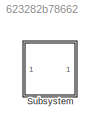
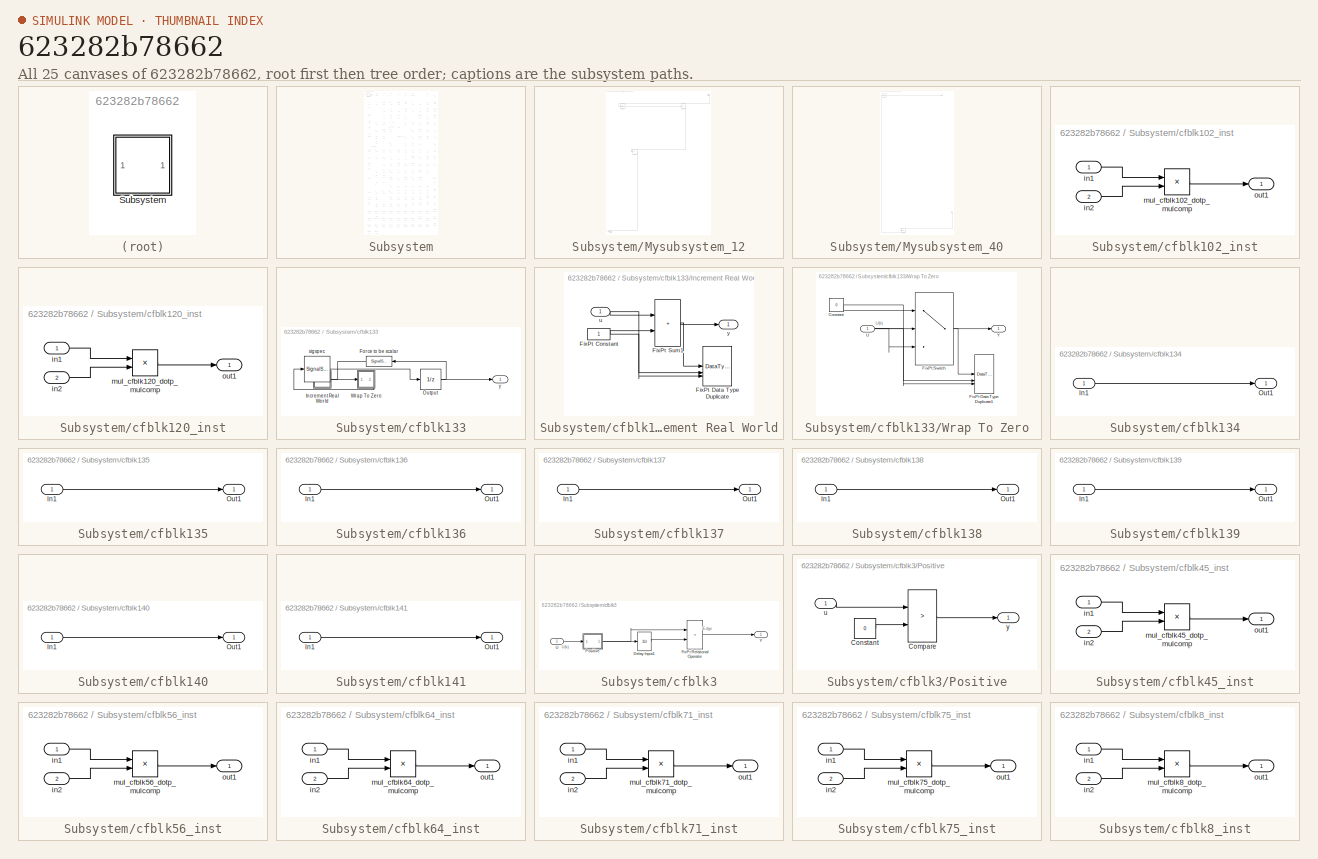
[diagram: thumbnail index - all 25 canvases of the model, root first then tree order]
MODEL slx_623282b78662
KIND model
CONFIG AbsTol = auto
CONFIG EnableMultiTasking = off
CONFIG FixedStep = auto
CONFIG MaxStep = auto
CONFIG MinStep = auto
CONFIG RelTol = 1e-3
CONFIG SampleTimeConstraint = Unconstrained
CONFIG SolverName = VariableStepAuto
CONFIG StartTime = 0.0
CONFIG StopTime = 10.0
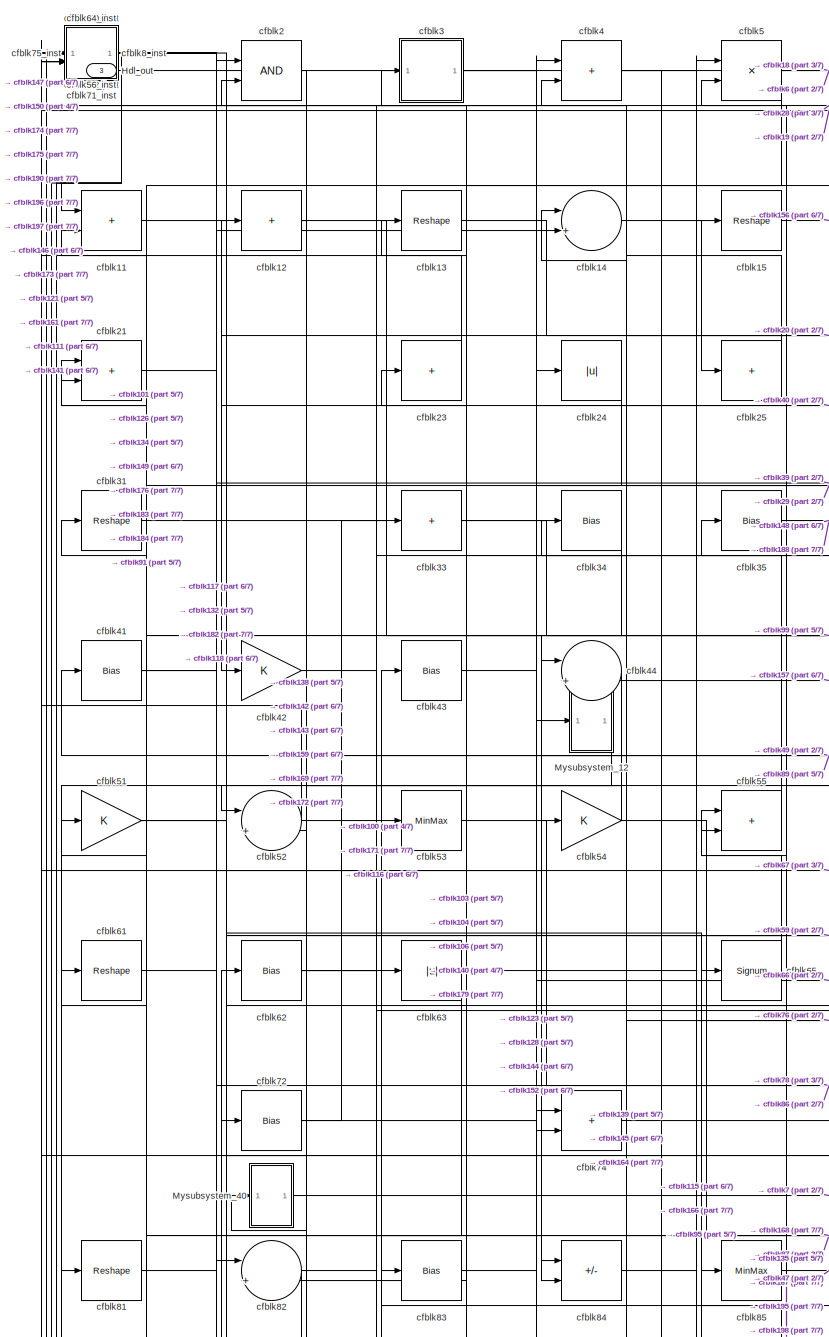
[diagram: Subsystem - part 1/7, top left region]
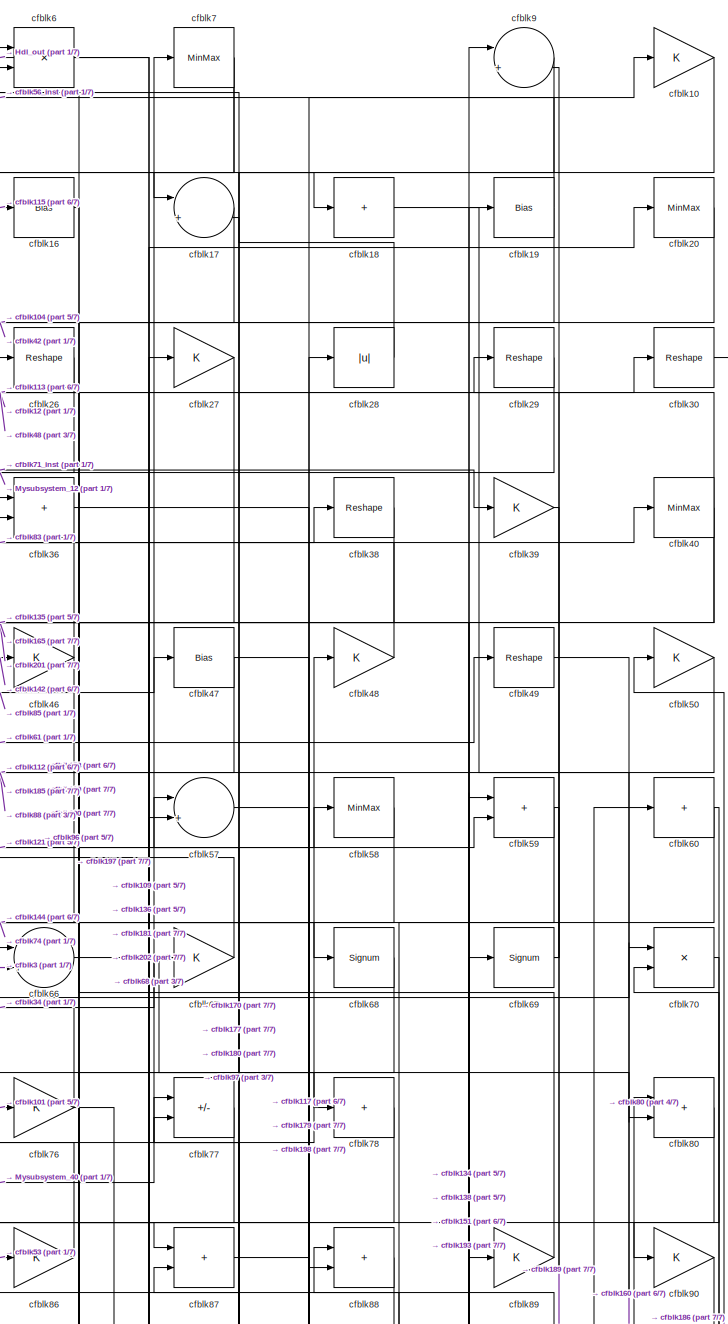
[diagram: Subsystem - part 2/7, top right region]
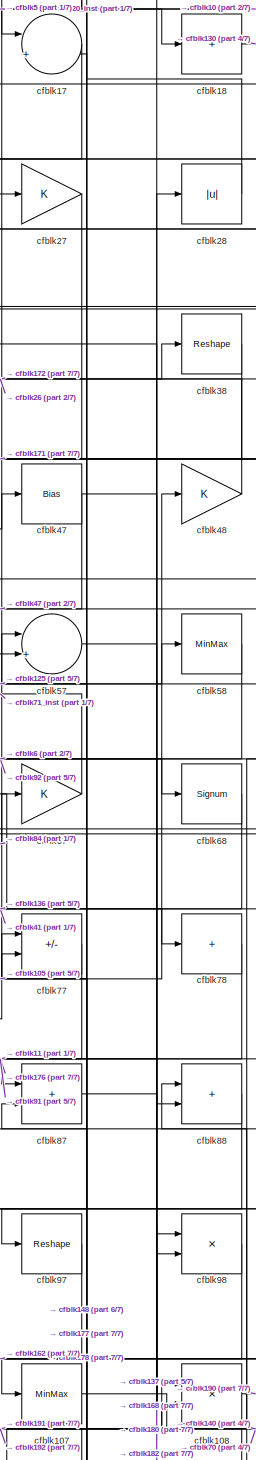
[diagram: Subsystem - part 3/7, top right region]
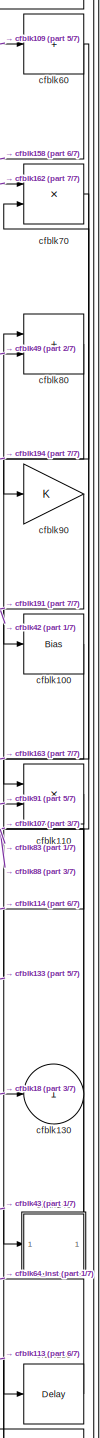
[diagram: Subsystem - part 4/7, middle right region]
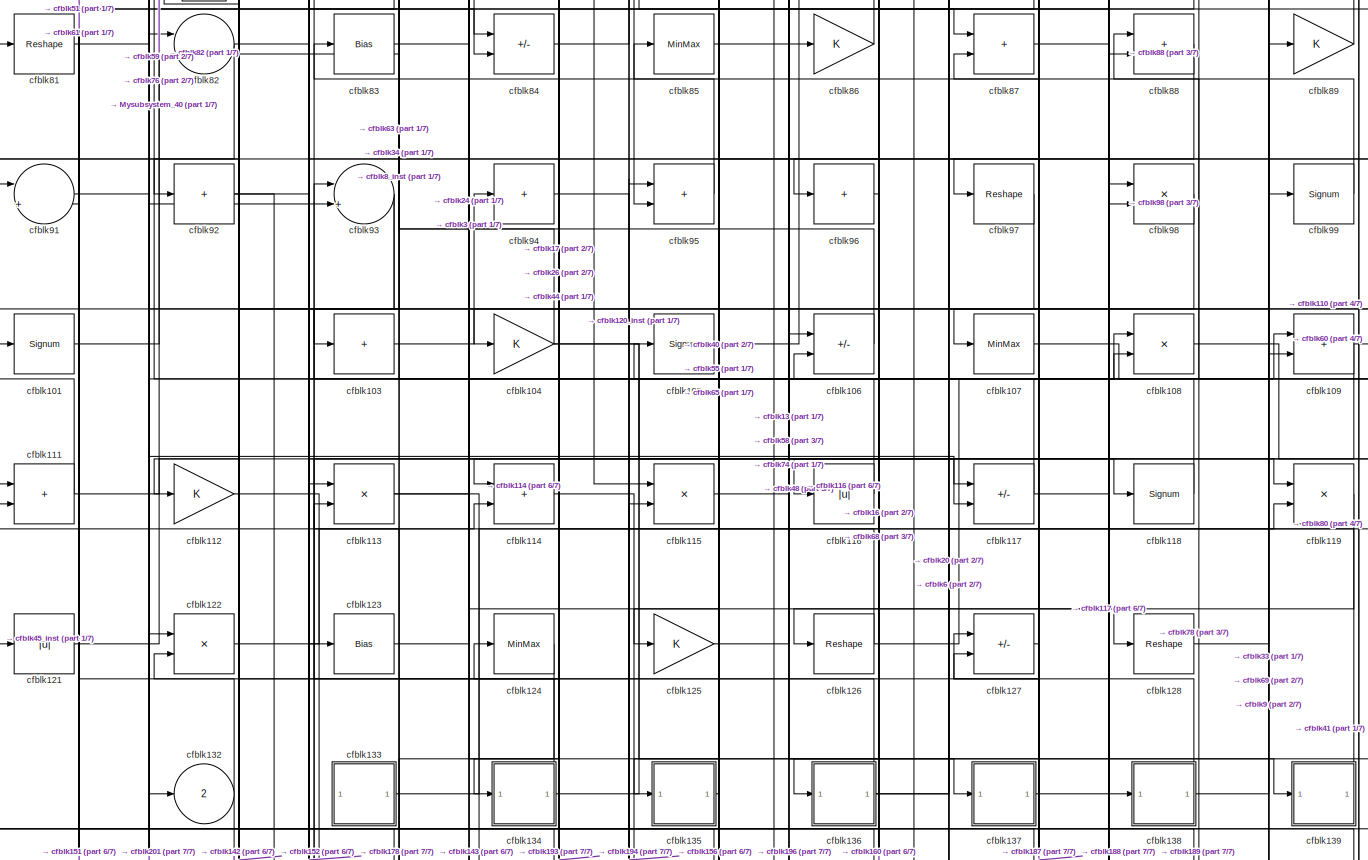
[diagram: Subsystem - part 5/7, full width, middle band]
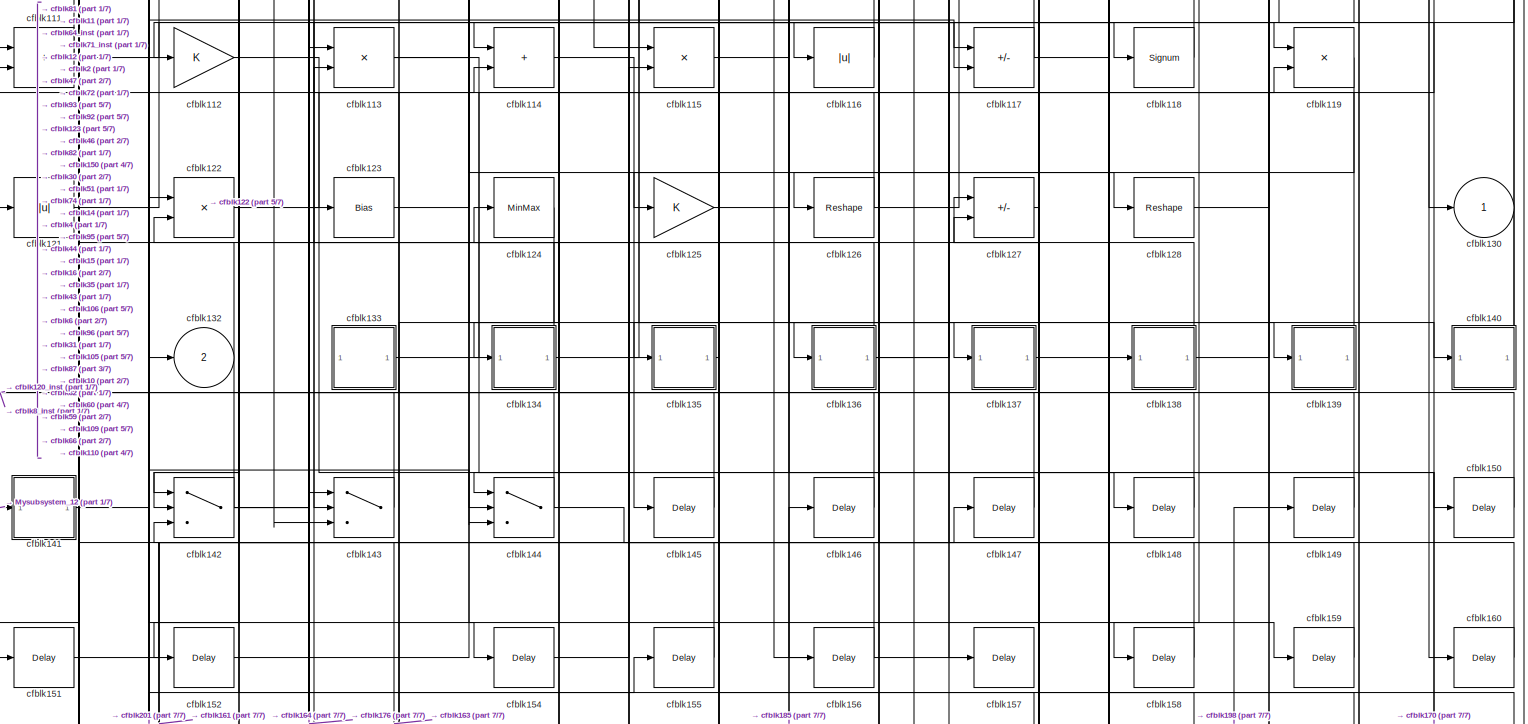
[diagram: Subsystem - part 6/7, full width, middle band]
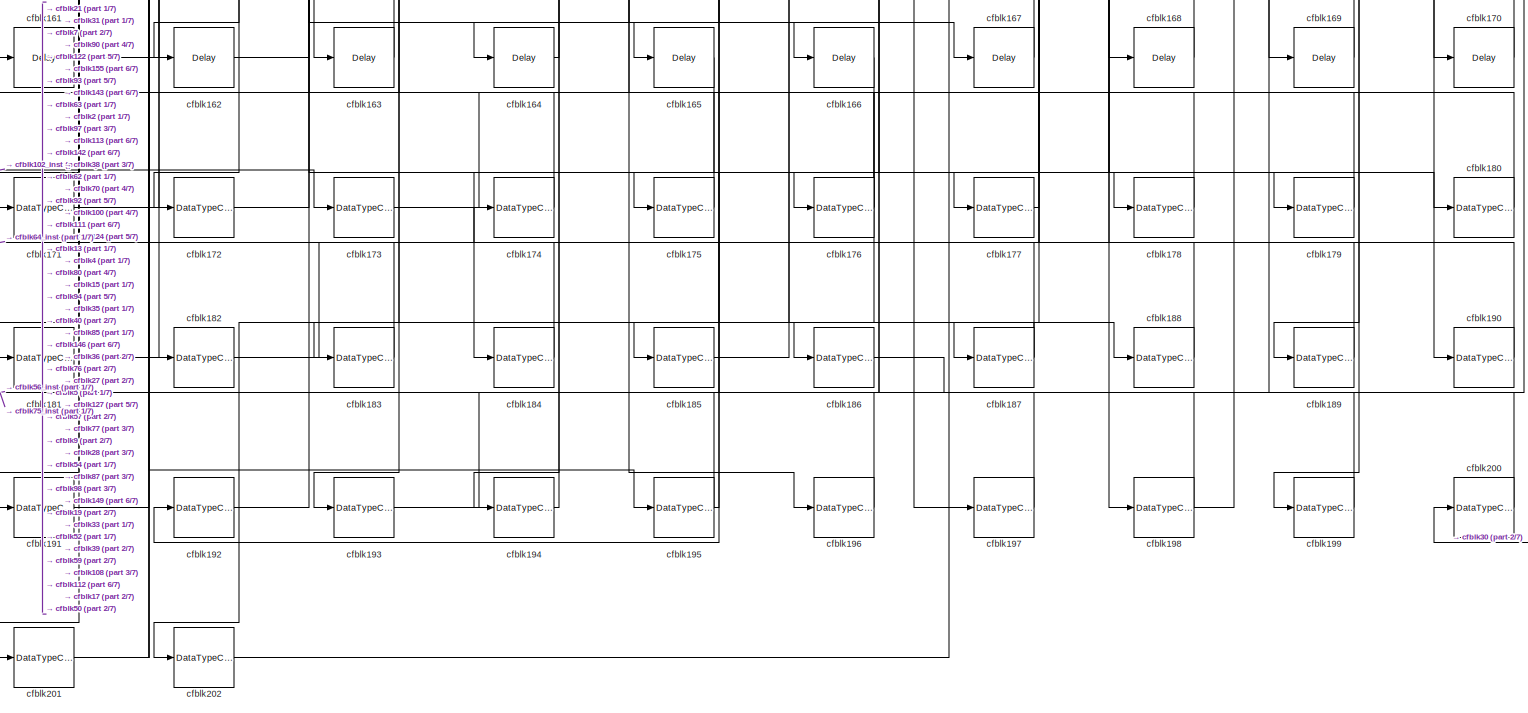
[diagram: Subsystem - part 7/7, full width, bottom band]
BLOCK [SubSystem] Subsystem
BLOCK [Outport] Subsystem/Hdl_out
  OutDataTypeStr = uint8
  Port = 3
  SampleTime = 1
BLOCK [SubSystem] Subsystem/Mysubsystem_12
BLOCK [Inport] Subsystem/Mysubsystem_12/In1
  OutDataTypeStr = uint8
  PortDimensions = 1
  SampleTime = 1
BLOCK [Outport] Subsystem/Mysubsystem_12/Out1
  SampleTime = 1
BLOCK [MinMax] Subsystem/Mysubsystem_12/cfblk32
BLOCK [Abs] Subsystem/Mysubsystem_12/cfblk37
  SaturateOnIntegerOverflow = off
BLOCK [Sum] Subsystem/Mysubsystem_12/cfblk73
  IconShape = rectangular
  Inputs = +
BLOCK [SubSystem] Subsystem/Mysubsystem_40
BLOCK [Inport] Subsystem/Mysubsystem_40/In1
  OutDataTypeStr = uint8
  PortDimensions = 1
  SampleTime = 1
BLOCK [Reference] Subsystem/Mysubsystem_40/cfblk1  REF=simulink/Logic and Bit
Operations/Extract Bits
  LibrarySourceBlock = hdlsllib/Logic and Bit\nOperations/Extract Bits
  SourceBlock = simulink/Logic and Bit\nOperations/Extract Bits
  SourceType = Extract Bits
BLOCK [Delay] Subsystem/Mysubsystem_40/cfblk153
  InputPortMap = u0
  SampleTime = 1
BLOCK [Outport] Subsystem/Mysubsystem_40/y
  SampleTime = 1
BLOCK [Gain] Subsystem/cfblk10
  OutDataTypeStr = uint8
BLOCK [Bias] Subsystem/cfblk100
  Bias = 0.0
  SaturateOnIntegerOverflow = off
BLOCK [Signum] Subsystem/cfblk101
BLOCK [SubSystem] Subsystem/cfblk102_inst
BLOCK [Inport] Subsystem/cfblk102_inst/in1
  OutDataTypeStr = uint8
  SampleTime = 1
BLOCK [Inport] Subsystem/cfblk102_inst/in2
  OutDataTypeStr = uint8
  Port = 2
  SampleTime = 1
BLOCK [Product] Subsystem/cfblk102_inst/mul_cfblk102_dotp_mulcomp
  Inputs = **
  OutDataTypeStr = uint8
  SampleTime = 1
BLOCK [Outport] Subsystem/cfblk102_inst/out1
  OutDataTypeStr = uint8
  SampleTime = 1
BLOCK [Sum] Subsystem/cfblk103
  IconShape = rectangular
  Inputs = +
  OutDataTypeStr = uint8
BLOCK [Gain] Subsystem/cfblk104
  OutDataTypeStr = uint8
BLOCK [Signum] Subsystem/cfblk105
BLOCK [Sum] Subsystem/cfblk106
  IconShape = rectangular
  Inputs = +-
  OutDataTypeStr = uint8
BLOCK [MinMax] Subsystem/cfblk107
  OutDataTypeStr = uint8
BLOCK [Product] Subsystem/cfblk108
  Inputs = */
  OutDataTypeStr = uint8
  RndMeth = Zero
  SaturateOnIntegerOverflow = on
BLOCK [Sum] Subsystem/cfblk109
  IconShape = rectangular
  OutDataTypeStr = uint8
BLOCK [Sum] Subsystem/cfblk11
  IconShape = rectangular
  OutDataTypeStr = uint8
BLOCK [Product] Subsystem/cfblk110
  Inputs = */
  OutDataTypeStr = uint8
  RndMeth = Zero
  SaturateOnIntegerOverflow = on
BLOCK [Sum] Subsystem/cfblk111
  IconShape = rectangular
  OutDataTypeStr = uint8
BLOCK [Gain] Subsystem/cfblk112
  OutDataTypeStr = uint8
BLOCK [Product] Subsystem/cfblk113
  Inputs = */
  OutDataTypeStr = uint8
  RndMeth = Zero
  SaturateOnIntegerOverflow = on
BLOCK [Sum] Subsystem/cfblk114
  IconShape = rectangular
  OutDataTypeStr = uint8
BLOCK [Product] Subsystem/cfblk115
  Inputs = */
  OutDataTypeStr = uint8
  RndMeth = Zero
  SaturateOnIntegerOverflow = on
BLOCK [Abs] Subsystem/cfblk116
  OutDataTypeStr = uint8
  SaturateOnIntegerOverflow = off
BLOCK [Sum] Subsystem/cfblk117
  IconShape = rectangular
  Inputs = +-
  OutDataTypeStr = uint8
BLOCK [Signum] Subsystem/cfblk118
BLOCK [Product] Subsystem/cfblk119
  Inputs = */
  OutDataTypeStr = uint8
  RndMeth = Zero
  SaturateOnIntegerOverflow = on
BLOCK [Sum] Subsystem/cfblk12
  IconShape = rectangular
  Inputs = +
  OutDataTypeStr = uint8
BLOCK [SubSystem] Subsystem/cfblk120_inst
BLOCK [Inport] Subsystem/cfblk120_inst/in1
  OutDataTypeStr = uint8
  SampleTime = 1
BLOCK [Inport] Subsystem/cfblk120_inst/in2
  OutDataTypeStr = uint8
  Port = 2
  SampleTime = 1
BLOCK [Product] Subsystem/cfblk120_inst/mul_cfblk120_dotp_mulcomp
  Inputs = **
  OutDataTypeStr = uint8
  SampleTime = 1
BLOCK [Outport] Subsystem/cfblk120_inst/out1
  OutDataTypeStr = uint8
  SampleTime = 1
BLOCK [Abs] Subsystem/cfblk121
  OutDataTypeStr = uint8
  SaturateOnIntegerOverflow = off
BLOCK [Product] Subsystem/cfblk122
  Inputs = */
  OutDataTypeStr = uint8
  RndMeth = Zero
  SaturateOnIntegerOverflow = on
BLOCK [Bias] Subsystem/cfblk123
  Bias = 0.0
  SaturateOnIntegerOverflow = off
BLOCK [MinMax] Subsystem/cfblk124
  OutDataTypeStr = uint8
BLOCK [Gain] Subsystem/cfblk125
  OutDataTypeStr = uint8
BLOCK [Reshape] Subsystem/cfblk126
BLOCK [Sum] Subsystem/cfblk127
  IconShape = rectangular
  Inputs = +-
  OutDataTypeStr = uint8
BLOCK [Reshape] Subsystem/cfblk128
BLOCK [Reshape] Subsystem/cfblk13
BLOCK [Outport] Subsystem/cfblk130
  OutDataTypeStr = uint8
  SampleTime = 1
  VectorParamsAs1DForOutWhenUnconnected = off
BLOCK [Outport] Subsystem/cfblk132
  OutDataTypeStr = uint8
  Port = 2
  SampleTime = 1
  VectorParamsAs1DForOutWhenUnconnected = off
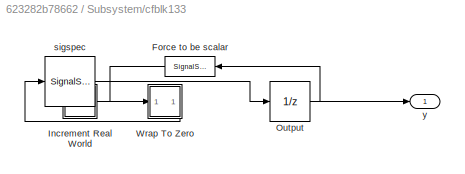
BLOCK [SubSystem] Subsystem/cfblk133
BLOCK [SignalSpecification] Subsystem/cfblk133/Force to be scalar
  Dimensions = 1
  DisableCoverage = on
BLOCK [SubSystem] Subsystem/cfblk133/Increment Real World
BLOCK [Constant] Subsystem/cfblk133/Increment Real World/FixPt Constant
  DisableCoverage = on
  OutDataTypeStr = Inherit: Inherit via back propagation
  SampleTime = -1
BLOCK [DataTypeDuplicate] Subsystem/cfblk133/Increment Real World/FixPt Data Type Duplicate
  DisableCoverage = on
  NumInputPorts = 3
BLOCK [Sum] Subsystem/cfblk133/Increment Real World/FixPt Sum1
  IconShape = rectangular
  InputSameDT = on
  LockScale = on
  OutDataTypeStr = Inherit: Inherit via back propagation
BLOCK [Inport] Subsystem/cfblk133/Increment Real World/u
  OutDataTypeStr = uint16
  SampleTime = 1
BLOCK [Outport] Subsystem/cfblk133/Increment Real World/y
  SampleTime = 1
BLOCK [UnitDelay] Subsystem/cfblk133/Output
  HasFrameUpgradeWarning = on
  InitialCondition = 0.0
  SampleTime = tsamp
BLOCK [SubSystem] Subsystem/cfblk133/Wrap To Zero
BLOCK [Constant] Subsystem/cfblk133/Wrap To Zero/Constant
  DisableCoverage = on
  OutDataTypeStr = Inherit: Inherit via back propagation
  SampleTime = -1
  Value = 0
BLOCK [DataTypeDuplicate] Subsystem/cfblk133/Wrap To Zero/FixPt Data Type Duplicate1
  DisableCoverage = on
  NumInputPorts = 3
BLOCK [Switch] Subsystem/cfblk133/Wrap To Zero/FixPt Switch
  Criteria = u2 > Threshold
  InputSameDT = off
  OutDataTypeStr = Inherit: Inherit via back propagation
  SaturateOnIntegerOverflow = off
  Threshold = Threshold
  ZeroCross = off
BLOCK [Inport] Subsystem/cfblk133/Wrap To Zero/U
  OutDataTypeStr = uint16
  SampleTime = 1
BLOCK [Outport] Subsystem/cfblk133/Wrap To Zero/Y
  SampleTime = 1
BLOCK [SignalSpecification] Subsystem/cfblk133/sigspec
  Dimensions = 1
  OutDataTypeStr = uint16
BLOCK [Outport] Subsystem/cfblk133/y
  SampleTime = 1
BLOCK [SubSystem] Subsystem/cfblk134
BLOCK [Inport] Subsystem/cfblk134/In1
  OutDataTypeStr = uint8
  PortDimensions = 1
  SampleTime = 1
BLOCK [Outport] Subsystem/cfblk134/Out1
  SampleTime = 1
BLOCK [SubSystem] Subsystem/cfblk135
BLOCK [Inport] Subsystem/cfblk135/In1
  OutDataTypeStr = uint8
  PortDimensions = 1
  SampleTime = 1
BLOCK [Outport] Subsystem/cfblk135/Out1
  SampleTime = 1
BLOCK [SubSystem] Subsystem/cfblk136
BLOCK [Inport] Subsystem/cfblk136/In1
  OutDataTypeStr = uint8
  PortDimensions = 1
  SampleTime = 1
BLOCK [Outport] Subsystem/cfblk136/Out1
  SampleTime = 1
BLOCK [SubSystem] Subsystem/cfblk137
BLOCK [Inport] Subsystem/cfblk137/In1
  OutDataTypeStr = uint8
  PortDimensions = 1
  SampleTime = 1
BLOCK [Outport] Subsystem/cfblk137/Out1
  SampleTime = 1
BLOCK [SubSystem] Subsystem/cfblk138
BLOCK [Inport] Subsystem/cfblk138/In1
  OutDataTypeStr = uint8
  PortDimensions = 1
  SampleTime = 1
BLOCK [Outport] Subsystem/cfblk138/Out1
  SampleTime = 1
BLOCK [SubSystem] Subsystem/cfblk139
BLOCK [Inport] Subsystem/cfblk139/In1
  OutDataTypeStr = uint8
  PortDimensions = 1
  SampleTime = 1
BLOCK [Outport] Subsystem/cfblk139/Out1
  SampleTime = 1
BLOCK [Sum] Subsystem/cfblk14
  Inputs = |++
  OutDataTypeStr = uint8
BLOCK [SubSystem] Subsystem/cfblk140
BLOCK [Inport] Subsystem/cfblk140/In1
  OutDataTypeStr = uint8
  PortDimensions = 1
  SampleTime = 1
BLOCK [Outport] Subsystem/cfblk140/Out1
  SampleTime = 1
BLOCK [SubSystem] Subsystem/cfblk141
BLOCK [Inport] Subsystem/cfblk141/In1
  OutDataTypeStr = uint8
  PortDimensions = 1
  SampleTime = 1
BLOCK [Outport] Subsystem/cfblk141/Out1
  SampleTime = 1
BLOCK [Switch] Subsystem/cfblk142
  InputSameDT = off
  OutDataTypeStr = uint8
  SaturateOnIntegerOverflow = off
BLOCK [Switch] Subsystem/cfblk143
  InputSameDT = off
  OutDataTypeStr = uint8
  SaturateOnIntegerOverflow = off
BLOCK [Switch] Subsystem/cfblk144
  InputSameDT = off
  OutDataTypeStr = uint8
  SaturateOnIntegerOverflow = off
BLOCK [Delay] Subsystem/cfblk145
  InputPortMap = u0
  SampleTime = 1
BLOCK [Delay] Subsystem/cfblk146
  InputPortMap = u0
  SampleTime = 1
BLOCK [Delay] Subsystem/cfblk147
  InputPortMap = u0
  SampleTime = 1
BLOCK [Delay] Subsystem/cfblk148
  InputPortMap = u0
  SampleTime = 1
BLOCK [Delay] Subsystem/cfblk149
  InputPortMap = u0
  SampleTime = 1
BLOCK [Reshape] Subsystem/cfblk15
BLOCK [Delay] Subsystem/cfblk150
  InputPortMap = u0
  SampleTime = 1
BLOCK [Delay] Subsystem/cfblk151
  InputPortMap = u0
  SampleTime = 1
BLOCK [Delay] Subsystem/cfblk152
  InputPortMap = u0
  SampleTime = 1
BLOCK [Delay] Subsystem/cfblk154
  InputPortMap = u0
  SampleTime = 1
BLOCK [Delay] Subsystem/cfblk155
  InputPortMap = u0
  SampleTime = 1
BLOCK [Delay] Subsystem/cfblk156
  InputPortMap = u0
  SampleTime = 1
BLOCK [Delay] Subsystem/cfblk157
  InputPortMap = u0
  SampleTime = 1
BLOCK [Delay] Subsystem/cfblk158
  InputPortMap = u0
  SampleTime = 1
BLOCK [Delay] Subsystem/cfblk159
  InputPortMap = u0
  SampleTime = 1
BLOCK [Bias] Subsystem/cfblk16
  Bias = 0.0
  SaturateOnIntegerOverflow = off
BLOCK [Delay] Subsystem/cfblk160
  InputPortMap = u0
  SampleTime = 1
BLOCK [Delay] Subsystem/cfblk161
  InputPortMap = u0
  SampleTime = 1
BLOCK [Delay] Subsystem/cfblk162
  InputPortMap = u0
  SampleTime = 1
BLOCK [Delay] Subsystem/cfblk163
  InputPortMap = u0
  SampleTime = 1
BLOCK [Delay] Subsystem/cfblk164
  InputPortMap = u0
  SampleTime = 1
BLOCK [Delay] Subsystem/cfblk165
  InputPortMap = u0
  SampleTime = 1
BLOCK [Delay] Subsystem/cfblk166
  InputPortMap = u0
  SampleTime = 1
BLOCK [Delay] Subsystem/cfblk167
  InputPortMap = u0
  SampleTime = 1
BLOCK [Delay] Subsystem/cfblk168
  InputPortMap = u0
  SampleTime = 1
BLOCK [Delay] Subsystem/cfblk169
  InputPortMap = u0
  SampleTime = 1
BLOCK [Sum] Subsystem/cfblk17
  Inputs = |++
  OutDataTypeStr = uint8
BLOCK [Delay] Subsystem/cfblk170
  InputPortMap = u0
  SampleTime = 1
BLOCK [DataTypeConversion] Subsystem/cfblk171
  OutDataTypeStr = uint8
  RndMeth = Floor
  SaturateOnIntegerOverflow = off
BLOCK [DataTypeConversion] Subsystem/cfblk172
  OutDataTypeStr = uint8
  RndMeth = Floor
  SaturateOnIntegerOverflow = off
BLOCK [DataTypeConversion] Subsystem/cfblk173
  OutDataTypeStr = uint8
  RndMeth = Floor
  SaturateOnIntegerOverflow = off
BLOCK [DataTypeConversion] Subsystem/cfblk174
  OutDataTypeStr = uint8
  RndMeth = Floor
  SaturateOnIntegerOverflow = off
BLOCK [DataTypeConversion] Subsystem/cfblk175
  OutDataTypeStr = uint8
  RndMeth = Floor
  SaturateOnIntegerOverflow = off
BLOCK [DataTypeConversion] Subsystem/cfblk176
  OutDataTypeStr = uint8
  RndMeth = Floor
  SaturateOnIntegerOverflow = off
BLOCK [DataTypeConversion] Subsystem/cfblk177
  OutDataTypeStr = uint8
  RndMeth = Floor
  SaturateOnIntegerOverflow = off
BLOCK [DataTypeConversion] Subsystem/cfblk178
  OutDataTypeStr = uint8
  RndMeth = Floor
  SaturateOnIntegerOverflow = off
BLOCK [DataTypeConversion] Subsystem/cfblk179
  OutDataTypeStr = uint8
  RndMeth = Floor
  SaturateOnIntegerOverflow = off
BLOCK [Sum] Subsystem/cfblk18
  IconShape = rectangular
  Inputs = +
  OutDataTypeStr = uint8
BLOCK [DataTypeConversion] Subsystem/cfblk180
  OutDataTypeStr = uint8
  RndMeth = Floor
  SaturateOnIntegerOverflow = off
BLOCK [DataTypeConversion] Subsystem/cfblk181
  OutDataTypeStr = uint8
  RndMeth = Floor
  SaturateOnIntegerOverflow = off
BLOCK [DataTypeConversion] Subsystem/cfblk182
  OutDataTypeStr = uint8
  RndMeth = Floor
  SaturateOnIntegerOverflow = off
BLOCK [DataTypeConversion] Subsystem/cfblk183
  OutDataTypeStr = uint8
  RndMeth = Floor
  SaturateOnIntegerOverflow = off
BLOCK [DataTypeConversion] Subsystem/cfblk184
  OutDataTypeStr = uint8
  RndMeth = Floor
  SaturateOnIntegerOverflow = off
BLOCK [DataTypeConversion] Subsystem/cfblk185
  OutDataTypeStr = uint8
  RndMeth = Floor
  SaturateOnIntegerOverflow = off
BLOCK [DataTypeConversion] Subsystem/cfblk186
  OutDataTypeStr = uint8
  RndMeth = Floor
  SaturateOnIntegerOverflow = off
BLOCK [DataTypeConversion] Subsystem/cfblk187
  OutDataTypeStr = uint8
  RndMeth = Floor
  SaturateOnIntegerOverflow = off
BLOCK [DataTypeConversion] Subsystem/cfblk188
  OutDataTypeStr = uint8
  RndMeth = Floor
  SaturateOnIntegerOverflow = off
BLOCK [DataTypeConversion] Subsystem/cfblk189
  OutDataTypeStr = uint8
  RndMeth = Floor
  SaturateOnIntegerOverflow = off
BLOCK [Bias] Subsystem/cfblk19
  Bias = 0.0
  SaturateOnIntegerOverflow = off
BLOCK [DataTypeConversion] Subsystem/cfblk190
  OutDataTypeStr = uint8
  RndMeth = Floor
  SaturateOnIntegerOverflow = off
BLOCK [DataTypeConversion] Subsystem/cfblk191
  OutDataTypeStr = uint8
  RndMeth = Floor
  SaturateOnIntegerOverflow = off
BLOCK [DataTypeConversion] Subsystem/cfblk192
  OutDataTypeStr = uint8
  RndMeth = Floor
  SaturateOnIntegerOverflow = off
BLOCK [DataTypeConversion] Subsystem/cfblk193
  OutDataTypeStr = uint8
  RndMeth = Floor
  SaturateOnIntegerOverflow = off
BLOCK [DataTypeConversion] Subsystem/cfblk194
  OutDataTypeStr = uint8
  RndMeth = Floor
  SaturateOnIntegerOverflow = off
BLOCK [DataTypeConversion] Subsystem/cfblk195
  OutDataTypeStr = uint8
  RndMeth = Floor
  SaturateOnIntegerOverflow = off
BLOCK [DataTypeConversion] Subsystem/cfblk196
  OutDataTypeStr = uint8
  RndMeth = Floor
  SaturateOnIntegerOverflow = off
BLOCK [DataTypeConversion] Subsystem/cfblk197
  OutDataTypeStr = uint8
  RndMeth = Floor
  SaturateOnIntegerOverflow = off
BLOCK [DataTypeConversion] Subsystem/cfblk198
  OutDataTypeStr = uint8
  RndMeth = Floor
  SaturateOnIntegerOverflow = off
BLOCK [DataTypeConversion] Subsystem/cfblk199
  OutDataTypeStr = uint8
  RndMeth = Floor
  SaturateOnIntegerOverflow = off
BLOCK [Logic] Subsystem/cfblk2
  AllPortsSameDT = off
  OutDataTypeStr = boolean
BLOCK [MinMax] Subsystem/cfblk20
  OutDataTypeStr = uint8
BLOCK [DataTypeConversion] Subsystem/cfblk200
  OutDataTypeStr = uint8
  RndMeth = Floor
  SaturateOnIntegerOverflow = off
BLOCK [DataTypeConversion] Subsystem/cfblk201
  OutDataTypeStr = uint8
  RndMeth = Floor
  SaturateOnIntegerOverflow = off
BLOCK [DataTypeConversion] Subsystem/cfblk202
  OutDataTypeStr = uint8
  RndMeth = Floor
  SaturateOnIntegerOverflow = off
BLOCK [Sum] Subsystem/cfblk21
  IconShape = rectangular
  OutDataTypeStr = uint8
BLOCK [Sum] Subsystem/cfblk23
  IconShape = rectangular
  Inputs = +
  OutDataTypeStr = uint8
BLOCK [Abs] Subsystem/cfblk24
  OutDataTypeStr = uint8
  SaturateOnIntegerOverflow = off
BLOCK [Sum] Subsystem/cfblk25
  IconShape = rectangular
  Inputs = +
  OutDataTypeStr = uint8
BLOCK [Reshape] Subsystem/cfblk26
BLOCK [Gain] Subsystem/cfblk27
  OutDataTypeStr = uint8
BLOCK [Abs] Subsystem/cfblk28
  OutDataTypeStr = uint8
  SaturateOnIntegerOverflow = off
BLOCK [Reshape] Subsystem/cfblk29
BLOCK [SubSystem] Subsystem/cfblk3
BLOCK [UnitDelay] Subsystem/cfblk3/Delay Input1
  Description = Store in Global RAM
  DisableCoverage = on
  HasFrameUpgradeWarning = on
  InitialCondition = vinit
  SampleTime = -1
BLOCK [RelationalOperator] Subsystem/cfblk3/FixPt Relational Operator
  InputSameDT = off
  Operator = >
  OutDataTypeStr = fixdt(0, 8)
  ZeroCross = off
BLOCK [SubSystem] Subsystem/cfblk3/Positive
BLOCK [RelationalOperator] Subsystem/cfblk3/Positive/Compare
  Operator = >
  OutDataTypeStr = boolean
  ZeroCross = off
BLOCK [Constant] Subsystem/cfblk3/Positive/Constant
  DisableCoverage = on
  OutDataTypeStr = Inherit: Inherit via back propagation
  PreserveConstantTs = on
  SampleTime = -1
  Value = 0
BLOCK [Inport] Subsystem/cfblk3/Positive/u
  OutDataTypeStr = uint8
  SampleTime = 1
BLOCK [Outport] Subsystem/cfblk3/Positive/y
  SampleTime = 1
BLOCK [Inport] Subsystem/cfblk3/U
  OutDataTypeStr = uint8
  SampleTime = 1
BLOCK [Outport] Subsystem/cfblk3/Y
  SampleTime = 1
BLOCK [Reshape] Subsystem/cfblk30
BLOCK [Reshape] Subsystem/cfblk31
BLOCK [Sum] Subsystem/cfblk33
  IconShape = rectangular
  Inputs = +
  OutDataTypeStr = uint8
BLOCK [Bias] Subsystem/cfblk34
  Bias = 0.0
  SaturateOnIntegerOverflow = off
BLOCK [Bias] Subsystem/cfblk35
  Bias = 0.0
  SaturateOnIntegerOverflow = off
BLOCK [Sum] Subsystem/cfblk36
  IconShape = rectangular
  OutDataTypeStr = uint8
BLOCK [Reshape] Subsystem/cfblk38
BLOCK [Gain] Subsystem/cfblk39
  OutDataTypeStr = uint8
BLOCK [Sum] Subsystem/cfblk4
  IconShape = rectangular
  OutDataTypeStr = uint8
BLOCK [MinMax] Subsystem/cfblk40
  OutDataTypeStr = uint8
BLOCK [Bias] Subsystem/cfblk41
  Bias = 0.0
  SaturateOnIntegerOverflow = off
BLOCK [Gain] Subsystem/cfblk42
  OutDataTypeStr = uint8
BLOCK [Bias] Subsystem/cfblk43
  Bias = 0.0
  SaturateOnIntegerOverflow = off
BLOCK [Sum] Subsystem/cfblk44
  Inputs = |++
  OutDataTypeStr = uint8
BLOCK [SubSystem] Subsystem/cfblk45_inst
BLOCK [Inport] Subsystem/cfblk45_inst/in1
  OutDataTypeStr = uint8
  SampleTime = 1
BLOCK [Inport] Subsystem/cfblk45_inst/in2
  OutDataTypeStr = uint8
  Port = 2
  SampleTime = 1
BLOCK [Product] Subsystem/cfblk45_inst/mul_cfblk45_dotp_mulcomp
  Inputs = **
  OutDataTypeStr = uint8
  SampleTime = 1
BLOCK [Outport] Subsystem/cfblk45_inst/out1
  OutDataTypeStr = uint8
  SampleTime = 1
BLOCK [Gain] Subsystem/cfblk46
  OutDataTypeStr = uint8
BLOCK [Bias] Subsystem/cfblk47
  Bias = 0.0
  SaturateOnIntegerOverflow = off
BLOCK [Gain] Subsystem/cfblk48
  OutDataTypeStr = uint8
BLOCK [Reshape] Subsystem/cfblk49
BLOCK [Product] Subsystem/cfblk5
  Inputs = */
  OutDataTypeStr = uint8
  RndMeth = Zero
  SaturateOnIntegerOverflow = on
BLOCK [Gain] Subsystem/cfblk50
  OutDataTypeStr = uint8
BLOCK [Gain] Subsystem/cfblk51
  OutDataTypeStr = uint8
BLOCK [Sum] Subsystem/cfblk52
  Inputs = |++
  OutDataTypeStr = uint8
BLOCK [MinMax] Subsystem/cfblk53
  OutDataTypeStr = uint8
BLOCK [Gain] Subsystem/cfblk54
  OutDataTypeStr = uint8
BLOCK [Sum] Subsystem/cfblk55
  IconShape = rectangular
  OutDataTypeStr = uint8
BLOCK [SubSystem] Subsystem/cfblk56_inst
BLOCK [Inport] Subsystem/cfblk56_inst/in1
  OutDataTypeStr = uint8
  SampleTime = 1
BLOCK [Inport] Subsystem/cfblk56_inst/in2
  OutDataTypeStr = uint8
  Port = 2
  SampleTime = 1
BLOCK [Product] Subsystem/cfblk56_inst/mul_cfblk56_dotp_mulcomp
  Inputs = **
  OutDataTypeStr = uint8
  SampleTime = 1
BLOCK [Outport] Subsystem/cfblk56_inst/out1
  OutDataTypeStr = uint8
  SampleTime = 1
BLOCK [Sum] Subsystem/cfblk57
  Inputs = |++
  OutDataTypeStr = uint8
BLOCK [MinMax] Subsystem/cfblk58
  OutDataTypeStr = uint8
BLOCK [Sum] Subsystem/cfblk59
  IconShape = rectangular
  OutDataTypeStr = uint8
BLOCK [Product] Subsystem/cfblk6
  Inputs = */
  OutDataTypeStr = uint8
  RndMeth = Zero
  SaturateOnIntegerOverflow = on
BLOCK [Sum] Subsystem/cfblk60
  IconShape = rectangular
  Inputs = +
  OutDataTypeStr = uint8
BLOCK [Reshape] Subsystem/cfblk61
BLOCK [Bias] Subsystem/cfblk62
  Bias = 0.0
  SaturateOnIntegerOverflow = off
BLOCK [Abs] Subsystem/cfblk63
  OutDataTypeStr = uint8
  SaturateOnIntegerOverflow = off
BLOCK [SubSystem] Subsystem/cfblk64_inst
BLOCK [Inport] Subsystem/cfblk64_inst/in1
  OutDataTypeStr = uint8
  SampleTime = 1
BLOCK [Inport] Subsystem/cfblk64_inst/in2
  OutDataTypeStr = uint8
  Port = 2
  SampleTime = 1
BLOCK [Product] Subsystem/cfblk64_inst/mul_cfblk64_dotp_mulcomp
  Inputs = **
  OutDataTypeStr = uint8
  SampleTime = 1
BLOCK [Outport] Subsystem/cfblk64_inst/out1
  OutDataTypeStr = uint8
  SampleTime = 1
BLOCK [Signum] Subsystem/cfblk65
BLOCK [Sum] Subsystem/cfblk66
  Inputs = |++
  OutDataTypeStr = uint8
BLOCK [Gain] Subsystem/cfblk67
  OutDataTypeStr = uint8
BLOCK [Signum] Subsystem/cfblk68
BLOCK [Signum] Subsystem/cfblk69
BLOCK [MinMax] Subsystem/cfblk7
  OutDataTypeStr = uint8
BLOCK [Product] Subsystem/cfblk70
  Inputs = */
  OutDataTypeStr = uint8
  RndMeth = Zero
  SaturateOnIntegerOverflow = on
BLOCK [SubSystem] Subsystem/cfblk71_inst
BLOCK [Inport] Subsystem/cfblk71_inst/in1
  OutDataTypeStr = uint8
  SampleTime = 1
BLOCK [Inport] Subsystem/cfblk71_inst/in2
  OutDataTypeStr = uint8
  Port = 2
  SampleTime = 1
BLOCK [Product] Subsystem/cfblk71_inst/mul_cfblk71_dotp_mulcomp
  Inputs = **
  OutDataTypeStr = uint8
  SampleTime = 1
BLOCK [Outport] Subsystem/cfblk71_inst/out1
  OutDataTypeStr = uint8
  SampleTime = 1
BLOCK [Bias] Subsystem/cfblk72
  Bias = 0.0
  SaturateOnIntegerOverflow = off
BLOCK [Sum] Subsystem/cfblk74
  IconShape = rectangular
  OutDataTypeStr = uint8
BLOCK [SubSystem] Subsystem/cfblk75_inst
BLOCK [Inport] Subsystem/cfblk75_inst/in1
  OutDataTypeStr = uint8
  SampleTime = 1
BLOCK [Inport] Subsystem/cfblk75_inst/in2
  OutDataTypeStr = uint8
  Port = 2
  SampleTime = 1
BLOCK [Product] Subsystem/cfblk75_inst/mul_cfblk75_dotp_mulcomp
  Inputs = **
  OutDataTypeStr = uint8
  SampleTime = 1
BLOCK [Outport] Subsystem/cfblk75_inst/out1
  OutDataTypeStr = uint8
  SampleTime = 1
BLOCK [Gain] Subsystem/cfblk76
  OutDataTypeStr = uint8
BLOCK [Sum] Subsystem/cfblk77
  IconShape = rectangular
  Inputs = +-
  OutDataTypeStr = uint8
BLOCK [Sum] Subsystem/cfblk78
  IconShape = rectangular
  Inputs = +
  OutDataTypeStr = uint8
BLOCK [Sum] Subsystem/cfblk80
  IconShape = rectangular
  OutDataTypeStr = uint8
BLOCK [Reshape] Subsystem/cfblk81
BLOCK [Sum] Subsystem/cfblk82
  Inputs = |++
  OutDataTypeStr = uint8
BLOCK [Bias] Subsystem/cfblk83
  Bias = 0.0
  SaturateOnIntegerOverflow = off
BLOCK [Sum] Subsystem/cfblk84
  IconShape = rectangular
  Inputs = +-
  OutDataTypeStr = uint8
BLOCK [MinMax] Subsystem/cfblk85
  OutDataTypeStr = uint8
BLOCK [Gain] Subsystem/cfblk86
  OutDataTypeStr = uint8
BLOCK [Sum] Subsystem/cfblk87
  IconShape = rectangular
  OutDataTypeStr = uint8
BLOCK [Sum] Subsystem/cfblk88
  IconShape = rectangular
  OutDataTypeStr = uint8
BLOCK [Gain] Subsystem/cfblk89
  OutDataTypeStr = uint8
BLOCK [SubSystem] Subsystem/cfblk8_inst
BLOCK [Inport] Subsystem/cfblk8_inst/in1
  OutDataTypeStr = uint8
  SampleTime = 1
BLOCK [Inport] Subsystem/cfblk8_inst/in2
  OutDataTypeStr = uint8
  Port = 2
  SampleTime = 1
BLOCK [Product] Subsystem/cfblk8_inst/mul_cfblk8_dotp_mulcomp
  Inputs = **
  OutDataTypeStr = uint8
  SampleTime = 1
BLOCK [Outport] Subsystem/cfblk8_inst/out1
  OutDataTypeStr = uint8
  SampleTime = 1
BLOCK [Sum] Subsystem/cfblk9
  Inputs = |++
  OutDataTypeStr = uint8
BLOCK [Gain] Subsystem/cfblk90
  OutDataTypeStr = uint8
BLOCK [Sum] Subsystem/cfblk91
  Inputs = |++
  OutDataTypeStr = uint8
BLOCK [Sum] Subsystem/cfblk92
  IconShape = rectangular
  Inputs = +
  OutDataTypeStr = uint8
BLOCK [Sum] Subsystem/cfblk93
  Inputs = |++
  OutDataTypeStr = uint8
BLOCK [Sum] Subsystem/cfblk94
  IconShape = rectangular
  Inputs = +
  OutDataTypeStr = uint8
BLOCK [Sum] Subsystem/cfblk95
  IconShape = rectangular
  OutDataTypeStr = uint8
BLOCK [Sum] Subsystem/cfblk96
  IconShape = rectangular
  Inputs = +
  OutDataTypeStr = uint8
BLOCK [Reshape] Subsystem/cfblk97
BLOCK [Product] Subsystem/cfblk98
  Inputs = */
  OutDataTypeStr = uint8
  RndMeth = Zero
  SaturateOnIntegerOverflow = on
BLOCK [Signum] Subsystem/cfblk99
ANNOTATION Subsystem/cfblk133/Wrap To Zero: U(k)
ANNOTATION Subsystem/cfblk3: Edge
ANNOTATION Subsystem/cfblk3: U(k)
LINE Subsystem/Mysubsystem_12/In1:1 -> Subsystem/Mysubsystem_12/cfblk32:1
LINE Subsystem/Mysubsystem_12/cfblk32:1 -> Subsystem/Mysubsystem_12/cfblk37:1
LINE Subsystem/Mysubsystem_12/cfblk37:1 -> Subsystem/Mysubsystem_12/cfblk73:1
LINE Subsystem/Mysubsystem_12/cfblk73:1 -> Subsystem/Mysubsystem_12/Out1:1
LINE Subsystem/Mysubsystem_12:1 -> Subsystem/cfblk141:1
LINE Subsystem/Mysubsystem_40/In1:1 -> Subsystem/Mysubsystem_40/cfblk153:1
LINE Subsystem/Mysubsystem_40/cfblk153:1 -> Subsystem/Mysubsystem_40/cfblk1:1
LINE Subsystem/Mysubsystem_40/cfblk1:1 -> Subsystem/Mysubsystem_40/y:1
LINE Subsystem/Mysubsystem_40:1 -> Subsystem/cfblk7:1
LINE Subsystem/cfblk100:1 -> Subsystem/cfblk163:1
LINE Subsystem/cfblk101:1 -> Subsystem/cfblk76:1
LINE Subsystem/cfblk102_inst/in1:1 -> Subsystem/cfblk102_inst/mul_cfblk102_dotp_mulcomp:1
LINE Subsystem/cfblk102_inst/in2:1 -> Subsystem/cfblk102_inst/mul_cfblk102_dotp_mulcomp:2
LINE Subsystem/cfblk102_inst/mul_cfblk102_dotp_mulcomp:1 -> Subsystem/cfblk102_inst/out1:1
LINE Subsystem/cfblk102_inst:1 -> Subsystem/cfblk173:1
LINE Subsystem/cfblk103:1 -> Subsystem/cfblk94:1
NET Subsystem/cfblk104:1 -> Subsystem/cfblk119:1, Subsystem/cfblk137:1, Subsystem/cfblk82:2
LINE Subsystem/cfblk105:1 -> Subsystem/cfblk48:1
LINE Subsystem/cfblk106:1 -> Subsystem/cfblk8_inst:1
LINE Subsystem/cfblk107:1 -> Subsystem/cfblk70:2
LINE Subsystem/cfblk108:1 -> Subsystem/cfblk190:1
NET Subsystem/cfblk109:1 -> Subsystem/cfblk143:2, Subsystem/cfblk60:1
LINE Subsystem/cfblk10:1 -> Subsystem/cfblk97:1
LINE Subsystem/cfblk110:1 -> Subsystem/cfblk114:1
NET Subsystem/cfblk111:1 -> Subsystem/cfblk118:1, Subsystem/cfblk81:1
LINE Subsystem/cfblk112:1 -> Subsystem/cfblk170:1
NET Subsystem/cfblk113:1 -> Subsystem/cfblk150:1, Subsystem/cfblk30:1
LINE Subsystem/cfblk114:1 -> Subsystem/cfblk145:1
LINE Subsystem/cfblk115:1 -> Subsystem/cfblk16:1
LINE Subsystem/cfblk116:1 -> Subsystem/cfblk43:1
NET Subsystem/cfblk117:1 -> Subsystem/cfblk105:1, Subsystem/cfblk10:1
LINE Subsystem/cfblk118:1 -> Subsystem/cfblk62:1
LINE Subsystem/cfblk119:1 -> Subsystem/cfblk126:1
LINE Subsystem/cfblk11:1 -> Subsystem/cfblk87:1
LINE Subsystem/cfblk120_inst/in1:1 -> Subsystem/cfblk120_inst/mul_cfblk120_dotp_mulcomp:1
LINE Subsystem/cfblk120_inst/in2:1 -> Subsystem/cfblk120_inst/mul_cfblk120_dotp_mulcomp:2
LINE Subsystem/cfblk120_inst/mul_cfblk120_dotp_mulcomp:1 -> Subsystem/cfblk120_inst/out1:1
LINE Subsystem/cfblk120_inst:1 -> Subsystem/cfblk95:2
LINE Subsystem/cfblk121:1 -> Subsystem/cfblk59:2
LINE Subsystem/cfblk122:1 -> Subsystem/cfblk114:2
LINE Subsystem/cfblk123:1 -> Subsystem/cfblk24:1
LINE Subsystem/cfblk124:1 -> Subsystem/cfblk193:1
LINE Subsystem/cfblk125:1 -> Subsystem/cfblk58:1
NET Subsystem/cfblk126:1 -> Subsystem/cfblk109:1, Subsystem/cfblk51:1
LINE Subsystem/cfblk127:1 -> Subsystem/cfblk187:1
LINE Subsystem/cfblk128:1 -> Subsystem/cfblk89:1
NET Subsystem/cfblk12:1 -> Subsystem/cfblk142:2, Subsystem/cfblk84:2
LINE Subsystem/cfblk133:1 -> Subsystem/cfblk80:1
LINE Subsystem/cfblk134/In1:1 -> Subsystem/cfblk134/Out1:1
NET Subsystem/cfblk134:1 -> Subsystem/cfblk61:1, Subsystem/cfblk9:1
LINE Subsystem/cfblk135/In1:1 -> Subsystem/cfblk135/Out1:1
LINE Subsystem/cfblk135:1 -> Subsystem/cfblk55:1
LINE Subsystem/cfblk136/In1:1 -> Subsystem/cfblk136/Out1:1
NET Subsystem/cfblk136:1 -> Subsystem/cfblk119:2, Subsystem/cfblk20:1, Subsystem/cfblk93:1
LINE Subsystem/cfblk137/In1:1 -> Subsystem/cfblk137/Out1:1
LINE Subsystem/cfblk137:1 -> Subsystem/cfblk98:2
LINE Subsystem/cfblk138/In1:1 -> Subsystem/cfblk138/Out1:1
NET Subsystem/cfblk138:1 -> Subsystem/Mysubsystem_40:1, Subsystem/cfblk69:1
LINE Subsystem/cfblk139/In1:1 -> Subsystem/cfblk139/Out1:1
LINE Subsystem/cfblk139:1 -> Subsystem/cfblk44:1
LINE Subsystem/cfblk13:1 -> Subsystem/cfblk106:1
LINE Subsystem/cfblk140/In1:1 -> Subsystem/cfblk140/Out1:1
NET Subsystem/cfblk140:1 -> Subsystem/cfblk83:1, Subsystem/cfblk88:1
LINE Subsystem/cfblk141/In1:1 -> Subsystem/cfblk141/Out1:1
LINE Subsystem/cfblk141:1 -> Subsystem/cfblk154:1
NET Subsystem/cfblk142:1 -> Subsystem/cfblk122:2, Subsystem/cfblk123:1, Subsystem/cfblk164:1, Subsystem/cfblk46:1
LINE Subsystem/cfblk143:1 -> Subsystem/cfblk72:1
NET Subsystem/cfblk144:1 -> Subsystem/cfblk113:2, Subsystem/cfblk147:1
LINE Subsystem/cfblk145:1 -> Subsystem/cfblk14:1
LINE Subsystem/cfblk146:1 -> Subsystem/cfblk120_inst:2
LINE Subsystem/cfblk147:1 -> Subsystem/cfblk8_inst:2
LINE Subsystem/cfblk148:1 -> Subsystem/cfblk87:2
LINE Subsystem/cfblk149:1 -> Subsystem/cfblk11:2
LINE Subsystem/cfblk14:1 -> Subsystem/cfblk25:1
LINE Subsystem/cfblk150:1 -> Subsystem/cfblk64_inst:2
LINE Subsystem/cfblk151:1 -> Subsystem/cfblk59:1
LINE Subsystem/cfblk152:1 -> Subsystem/cfblk74:1
LINE Subsystem/cfblk154:1 -> Subsystem/cfblk115:2
LINE Subsystem/cfblk155:1 -> Subsystem/cfblk142:3
LINE Subsystem/cfblk156:1 -> Subsystem/cfblk95:1
LINE Subsystem/cfblk157:1 -> Subsystem/cfblk44:2
LINE Subsystem/cfblk158:1 -> Subsystem/cfblk6:2
LINE Subsystem/cfblk159:1 -> Subsystem/cfblk2:2
LINE Subsystem/cfblk15:1 -> Subsystem/cfblk156:1
LINE Subsystem/cfblk160:1 -> Subsystem/cfblk106:2
LINE Subsystem/cfblk161:1 -> Subsystem/cfblk143:1
LINE Subsystem/cfblk162:1 -> Subsystem/cfblk70:1
LINE Subsystem/cfblk163:1 -> Subsystem/cfblk111:1
LINE Subsystem/cfblk164:1 -> Subsystem/cfblk4:2
LINE Subsystem/cfblk165:1 -> Subsystem/cfblk184:1
LINE Subsystem/cfblk166:1 -> Subsystem/cfblk192:1
LINE Subsystem/cfblk167:1 -> Subsystem/cfblk5:2
LINE Subsystem/cfblk168:1 -> Subsystem/cfblk98:1
LINE Subsystem/cfblk169:1 -> Subsystem/cfblk52:2
LINE Subsystem/cfblk16:1 -> Subsystem/cfblk96:1
LINE Subsystem/cfblk170:1 -> Subsystem/cfblk17:2
LINE Subsystem/cfblk171:1 -> Subsystem/cfblk63:1
LINE Subsystem/cfblk172:1 -> Subsystem/cfblk38:1
LINE Subsystem/cfblk173:1 -> Subsystem/cfblk15:1
LINE Subsystem/cfblk174:1 -> Subsystem/cfblk102_inst:1
LINE Subsystem/cfblk175:1 -> Subsystem/cfblk102_inst:2
NET Subsystem/cfblk176:1 -> Subsystem/cfblk113:1, Subsystem/cfblk175:1, Subsystem/cfblk202:1, Subsystem/cfblk31:1
LINE Subsystem/cfblk177:1 -> Subsystem/cfblk77:1
LINE Subsystem/cfblk178:1 -> Subsystem/cfblk77:2
LINE Subsystem/cfblk179:1 -> Subsystem/cfblk13:1
LINE Subsystem/cfblk17:1 -> Subsystem/cfblk104:1
LINE Subsystem/cfblk180:1 -> Subsystem/cfblk57:1
LINE Subsystem/cfblk181:1 -> Subsystem/cfblk57:2
LINE Subsystem/cfblk182:1 -> Subsystem/cfblk28:1
LINE Subsystem/cfblk183:1 -> Subsystem/cfblk21:1
LINE Subsystem/cfblk184:1 -> Subsystem/cfblk21:2
LINE Subsystem/cfblk185:1 -> Subsystem/cfblk146:1
LINE Subsystem/cfblk186:1 -> Subsystem/cfblk50:1
NET Subsystem/cfblk187:1 -> Subsystem/cfblk122:1, Subsystem/cfblk186:1
LINE Subsystem/cfblk188:1 -> Subsystem/cfblk127:1
LINE Subsystem/cfblk189:1 -> Subsystem/cfblk127:2
LINE Subsystem/cfblk18:1 -> Subsystem/cfblk130:1
LINE Subsystem/cfblk190:1 -> Subsystem/cfblk64_inst:1
LINE Subsystem/cfblk191:1 -> Subsystem/cfblk108:1
LINE Subsystem/cfblk192:1 -> Subsystem/cfblk108:2
LINE Subsystem/cfblk193:1 -> Subsystem/cfblk19:1
LINE Subsystem/cfblk194:1 -> Subsystem/cfblk124:1
NET Subsystem/cfblk195:1 -> Subsystem/cfblk56_inst:1, Subsystem/cfblk85:1
LINE Subsystem/cfblk196:1 -> Subsystem/cfblk75_inst:1
LINE Subsystem/cfblk197:1 -> Subsystem/cfblk75_inst:2
NET Subsystem/cfblk198:1 -> Subsystem/cfblk149:1, Subsystem/cfblk35:1
LINE Subsystem/cfblk199:1 -> Subsystem/cfblk36:1
NET Subsystem/cfblk19:1 -> Subsystem/cfblk56_inst:2, Subsystem/cfblk66:1
LINE Subsystem/cfblk200:1 -> Subsystem/cfblk36:2
NET Subsystem/cfblk201:1 -> Subsystem/cfblk155:1, Subsystem/cfblk174:1, Subsystem/cfblk93:2
LINE Subsystem/cfblk202:1 -> Subsystem/cfblk27:1
LINE Subsystem/cfblk20:1 -> Subsystem/cfblk42:1
LINE Subsystem/cfblk21:1 -> Subsystem/cfblk182:1
LINE Subsystem/cfblk23:1 -> Subsystem/cfblk45_inst:1
LINE Subsystem/cfblk24:1 -> Subsystem/cfblk91:1
LINE Subsystem/cfblk25:1 -> Subsystem/cfblk2:1
LINE Subsystem/cfblk26:1 -> Subsystem/cfblk134:1
LINE Subsystem/cfblk27:1 -> Subsystem/cfblk201:1
LINE Subsystem/cfblk28:1 -> Subsystem/cfblk120_inst:1
LINE Subsystem/cfblk29:1 -> Subsystem/Mysubsystem_12:1
LINE Subsystem/cfblk2:1 -> Subsystem/cfblk172:1
LINE Subsystem/cfblk30:1 -> Subsystem/cfblk200:1
LINE Subsystem/cfblk31:1 -> Subsystem/cfblk157:1
NET Subsystem/cfblk33:1 -> Subsystem/cfblk169:1, Subsystem/cfblk99:1
LINE Subsystem/cfblk34:1 -> Subsystem/cfblk103:1
NET Subsystem/cfblk35:1 -> Subsystem/cfblk148:1, Subsystem/cfblk188:1
LINE Subsystem/cfblk36:1 -> Subsystem/cfblk198:1
LINE Subsystem/cfblk38:1 -> Subsystem/cfblk171:1
LINE Subsystem/cfblk39:1 -> Subsystem/cfblk199:1
NET Subsystem/cfblk3:1 -> Subsystem/cfblk128:1, Subsystem/cfblk66:2
NET Subsystem/cfblk40:1 -> Subsystem/cfblk12:1, Subsystem/cfblk135:1, Subsystem/cfblk165:1
NET Subsystem/cfblk41:1 -> Subsystem/cfblk78:1, Subsystem/cfblk82:1
LINE Subsystem/cfblk42:1 -> Subsystem/cfblk100:1
LINE Subsystem/cfblk43:1 -> Subsystem/cfblk140:1
LINE Subsystem/cfblk44:1 -> Subsystem/cfblk142:1
LINE Subsystem/cfblk45_inst/in1:1 -> Subsystem/cfblk45_inst/mul_cfblk45_dotp_mulcomp:1
LINE Subsystem/cfblk45_inst/in2:1 -> Subsystem/cfblk45_inst/mul_cfblk45_dotp_mulcomp:2
LINE Subsystem/cfblk45_inst/mul_cfblk45_dotp_mulcomp:1 -> Subsystem/cfblk45_inst/out1:1
LINE Subsystem/cfblk45_inst:1 -> Subsystem/cfblk121:1
NET Subsystem/cfblk46:1 -> Subsystem/cfblk144:1, Subsystem/cfblk6:1
NET Subsystem/cfblk47:1 -> Subsystem/cfblk112:1, Subsystem/cfblk88:2
LINE Subsystem/cfblk48:1 -> Subsystem/cfblk26:1
LINE Subsystem/cfblk49:1 -> Subsystem/cfblk80:2
NET Subsystem/cfblk4:1 -> Subsystem/cfblk115:1, Subsystem/cfblk166:1
LINE Subsystem/cfblk50:1 -> Subsystem/cfblk185:1
NET Subsystem/cfblk51:1 -> Subsystem/cfblk138:1, Subsystem/cfblk144:2
NET Subsystem/cfblk52:1 -> Subsystem/cfblk33:1, Subsystem/cfblk45_inst:2
LINE Subsystem/cfblk53:1 -> Subsystem/cfblk86:1
NET Subsystem/cfblk54:1 -> Subsystem/cfblk168:1, Subsystem/cfblk52:1
LINE Subsystem/cfblk55:1 -> Subsystem/cfblk23:1
LINE Subsystem/cfblk56_inst/in1:1 -> Subsystem/cfblk56_inst/mul_cfblk56_dotp_mulcomp:1
LINE Subsystem/cfblk56_inst/in2:1 -> Subsystem/cfblk56_inst/mul_cfblk56_dotp_mulcomp:2
LINE Subsystem/cfblk56_inst/mul_cfblk56_dotp_mulcomp:1 -> Subsystem/cfblk56_inst/out1:1
LINE Subsystem/cfblk56_inst:1 -> Subsystem/cfblk161:1
LINE Subsystem/cfblk57:1 -> Subsystem/cfblk179:1
LINE Subsystem/cfblk58:1 -> Subsystem/cfblk92:1
NET Subsystem/cfblk59:1 -> Subsystem/cfblk189:1, Subsystem/cfblk74:2
NET Subsystem/cfblk5:1 -> Subsystem/cfblk183:1, Subsystem/cfblk18:1
NET Subsystem/cfblk60:1 -> Subsystem/cfblk110:1, Subsystem/cfblk158:1
LINE Subsystem/cfblk61:1 -> Subsystem/cfblk49:1
NET Subsystem/cfblk62:1 -> Subsystem/cfblk167:1, Subsystem/cfblk4:1, Subsystem/cfblk84:1
NET Subsystem/cfblk63:1 -> Subsystem/cfblk101:1, Subsystem/cfblk5:1
LINE Subsystem/cfblk64_inst/in1:1 -> Subsystem/cfblk64_inst/mul_cfblk64_dotp_mulcomp:1
LINE Subsystem/cfblk64_inst/in2:1 -> Subsystem/cfblk64_inst/mul_cfblk64_dotp_mulcomp:2
LINE Subsystem/cfblk64_inst/mul_cfblk64_dotp_mulcomp:1 -> Subsystem/cfblk64_inst/out1:1
NET Subsystem/cfblk64_inst:1 -> Subsystem/cfblk11:1, Subsystem/cfblk144:3
LINE Subsystem/cfblk65:1 -> Subsystem/cfblk55:2
LINE Subsystem/cfblk66:1 -> Subsystem/cfblk160:1
LINE Subsystem/cfblk67:1 -> Subsystem/cfblk71_inst:2
LINE Subsystem/cfblk68:1 -> Subsystem/cfblk136:1
NET Subsystem/cfblk69:1 -> Subsystem/cfblk29:1, Subsystem/cfblk9:2
NET Subsystem/cfblk6:1 -> Subsystem/Hdl_out:1, Subsystem/cfblk109:2, Subsystem/cfblk68:1
LINE Subsystem/cfblk70:1 -> Subsystem/cfblk90:1
LINE Subsystem/cfblk71_inst/in1:1 -> Subsystem/cfblk71_inst/mul_cfblk71_dotp_mulcomp:1
LINE Subsystem/cfblk71_inst/in2:1 -> Subsystem/cfblk71_inst/mul_cfblk71_dotp_mulcomp:2
LINE Subsystem/cfblk71_inst/mul_cfblk71_dotp_mulcomp:1 -> Subsystem/cfblk71_inst/out1:1
NET Subsystem/cfblk71_inst:1 -> Subsystem/cfblk117:2, Subsystem/cfblk39:1
NET Subsystem/cfblk72:1 -> Subsystem/cfblk159:1, Subsystem/cfblk53:1
LINE Subsystem/cfblk74:1 -> Subsystem/cfblk139:1
LINE Subsystem/cfblk75_inst/in1:1 -> Subsystem/cfblk75_inst/mul_cfblk75_dotp_mulcomp:1
LINE Subsystem/cfblk75_inst/in2:1 -> Subsystem/cfblk75_inst/mul_cfblk75_dotp_mulcomp:2
LINE Subsystem/cfblk75_inst/mul_cfblk75_dotp_mulcomp:1 -> Subsystem/cfblk75_inst/out1:1
LINE Subsystem/cfblk75_inst:1 -> Subsystem/cfblk195:1
NET Subsystem/cfblk76:1 -> Subsystem/cfblk197:1, Subsystem/cfblk34:1
LINE Subsystem/cfblk77:1 -> Subsystem/cfblk176:1
LINE Subsystem/cfblk78:1 -> Subsystem/cfblk91:2
NET Subsystem/cfblk7:1 -> Subsystem/cfblk17:1, Subsystem/cfblk181:1
LINE Subsystem/cfblk80:1 -> Subsystem/cfblk194:1
LINE Subsystem/cfblk81:1 -> Subsystem/cfblk54:1
NET Subsystem/cfblk82:1 -> Subsystem/cfblk111:2, Subsystem/cfblk117:1
LINE Subsystem/cfblk83:1 -> Subsystem/cfblk40:1
LINE Subsystem/cfblk84:1 -> Subsystem/cfblk67:1
LINE Subsystem/cfblk85:1 -> Subsystem/cfblk47:1
LINE Subsystem/cfblk86:1 -> Subsystem/cfblk71_inst:1
LINE Subsystem/cfblk87:1 -> Subsystem/cfblk180:1
LINE Subsystem/cfblk88:1 -> Subsystem/cfblk125:1
LINE Subsystem/cfblk89:1 -> Subsystem/cfblk41:1
LINE Subsystem/cfblk8_inst/in1:1 -> Subsystem/cfblk8_inst/mul_cfblk8_dotp_mulcomp:1
LINE Subsystem/cfblk8_inst/in2:1 -> Subsystem/cfblk8_inst/mul_cfblk8_dotp_mulcomp:2
LINE Subsystem/cfblk8_inst/mul_cfblk8_dotp_mulcomp:1 -> Subsystem/cfblk8_inst/out1:1
NET Subsystem/cfblk8_inst:1 -> Subsystem/cfblk132:1, Subsystem/cfblk14:2
LINE Subsystem/cfblk90:1 -> Subsystem/cfblk191:1
LINE Subsystem/cfblk91:1 -> Subsystem/cfblk110:2
NET Subsystem/cfblk92:1 -> Subsystem/cfblk143:3, Subsystem/cfblk178:1
NET Subsystem/cfblk93:1 -> Subsystem/cfblk151:1, Subsystem/cfblk152:1
LINE Subsystem/cfblk94:1 -> Subsystem/cfblk196:1
LINE Subsystem/cfblk95:1 -> Subsystem/cfblk3:1
LINE Subsystem/cfblk96:1 -> Subsystem/cfblk116:1
LINE Subsystem/cfblk97:1 -> Subsystem/cfblk162:1
LINE Subsystem/cfblk98:1 -> Subsystem/cfblk107:1
LINE Subsystem/cfblk99:1 -> Subsystem/cfblk65:1
LINE Subsystem/cfblk9:1 -> Subsystem/cfblk177:1
note: NET lines group one-source signal fan-out (src -> all destinations, sorted); 1:1 wires keep LINE
